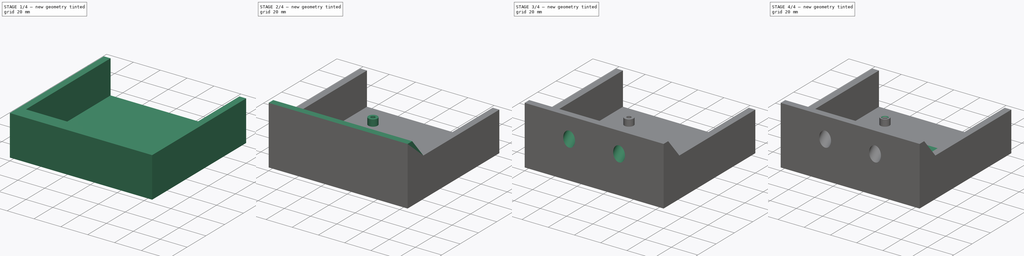
[diagram: build sequence overview — one tinted view per stage of 4, left to right]
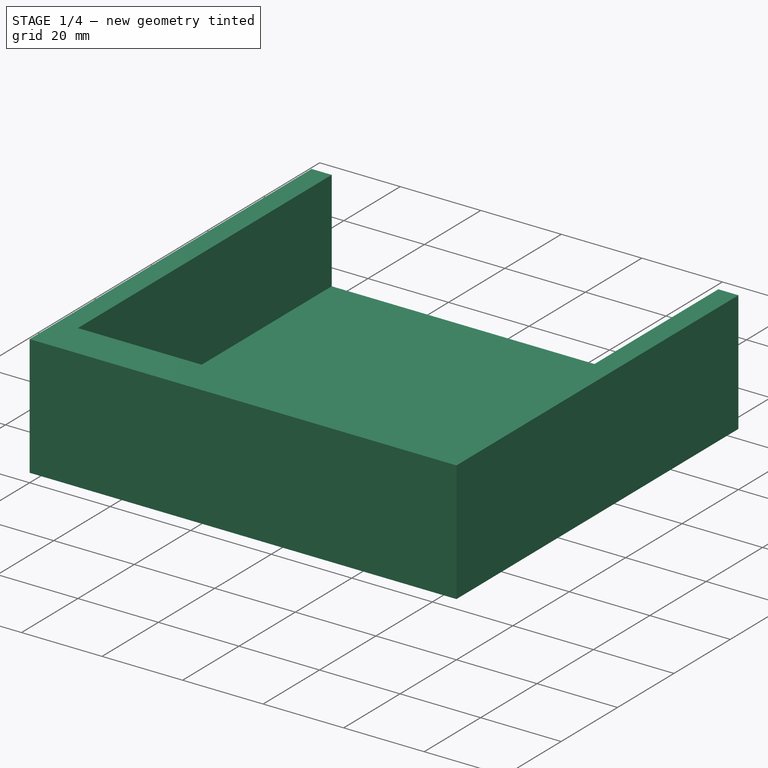
[diagram: stage 1 of 4 — iso view after this stage's code; geometry added in this stage tinted green]
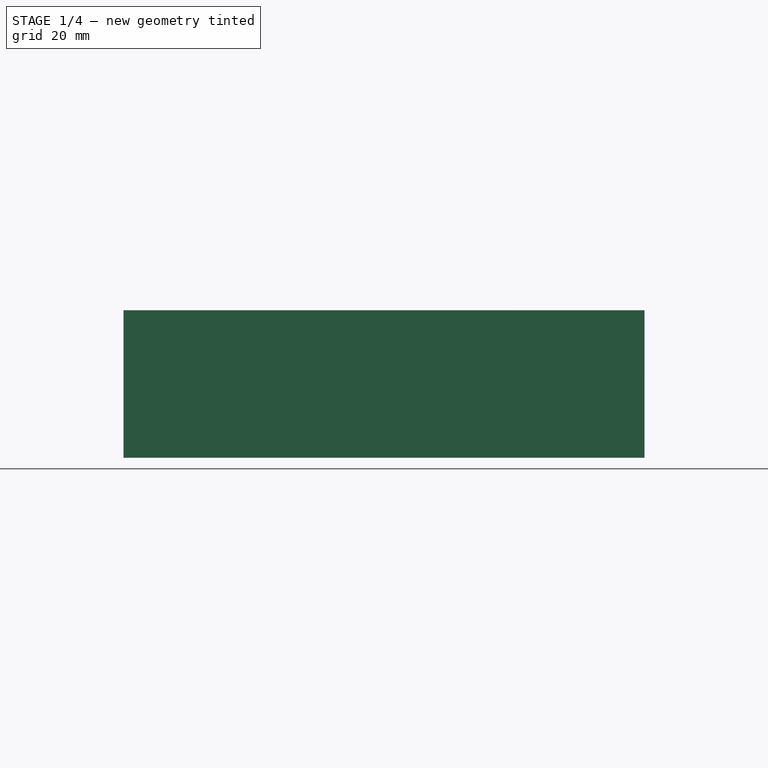
[diagram: stage 1 of 4 — front view after this stage's code; geometry added in this stage tinted green]
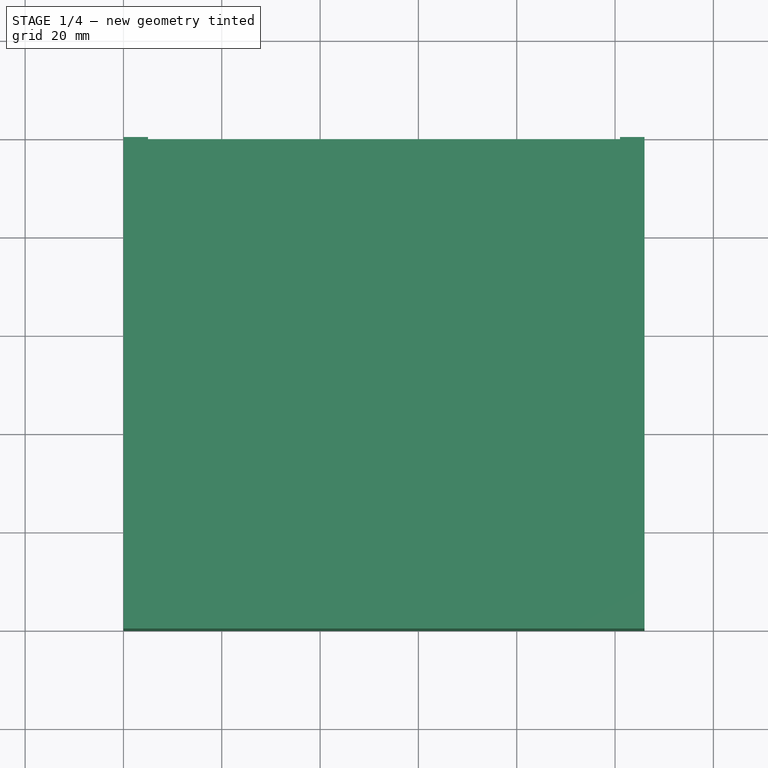
[diagram: stage 1 of 4 — top view after this stage's code; geometry added in this stage tinted green]
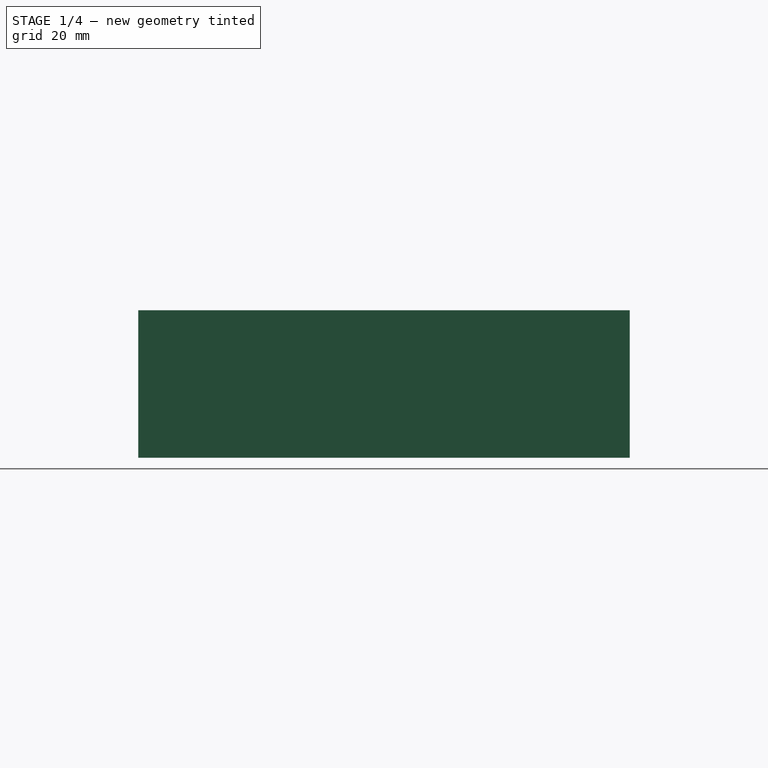
[diagram: stage 1 of 4 — right view after this stage's code; geometry added in this stage tinted green]
FCSTD DOCUMENT  (FreeCAD 1.0R39285 (Git))
Label: CAD-Bottom_RevA
License: All rights reserved
LicenseURL: https://en.wikipedia.org/wiki/All_rights_reserved
objects: Sketcher::SketchObject×8, PartDesign::Pad×6, PartDesign::Body×2, PartDesign::Pocket×2, PartDesign::Fillet×1, PartDesign::Chamfer×1
note: 48 computed .brp shape members not serialized (recipe doc carries the construction recipe); baked Part::Feature solids carry a one-line shape summary decoded from their .brp

FEATURE [Sketcher::SketchObject] Sketch
  ArcFitTolerance = 1e-06
  AttachmentSupport = -> [XY_Plane]
  FullyConstrained = true
  MakeInternals = false
  MapMode = 5
  sketch-geometry (21):
    g0: LineSegment [constr] StartX=8 StartY=13 StartZ=0 EndX=98 EndY=13 EndZ=0
    g1: LineSegment [constr] StartX=98 StartY=13 StartZ=0 EndX=98 EndY=85 EndZ=0
    g2: LineSegment [constr] StartX=98 StartY=85 StartZ=0 EndX=8 EndY=85 EndZ=0
    g3: LineSegment [constr] StartX=8 StartY=85 StartZ=0 EndX=8 EndY=13 EndZ=0
    g4: LineSegment StartX=0 StartY=0 StartZ=0 EndX=106 EndY=0 EndZ=0
    g5: LineSegment StartX=106 StartY=0 StartZ=0 EndX=106 EndY=100 EndZ=0
    g6: LineSegment StartX=106 StartY=100 StartZ=0 EndX=0 EndY=100 EndZ=0
    g7: LineSegment StartX=0 StartY=100 StartZ=0 EndX=0 EndY=0 EndZ=0
    g8: LineSegment [constr] StartX=8 StartY=13 StartZ=0 EndX=0 EndY=0 EndZ=0
    g9: LineSegment [constr] StartX=98 StartY=13 StartZ=0 EndX=106 EndY=0 EndZ=0
    g10: Circle [constr] CenterX=23 CenterY=80.8 CenterZ=0 NormalX=0 NormalY=0 NormalZ=1 AngleXU=0 Radius=1.6
    g11: LineSegment [constr] StartX=8 StartY=85 StartZ=0 EndX=23 EndY=80.8 EndZ=0
    g12: LineSegment [constr] StartX=98 StartY=13 StartZ=0 EndX=94.6 EndY=17.2 EndZ=0
    g13: Circle [constr] CenterX=83 CenterY=80.8 CenterZ=0 NormalX=0 NormalY=0 NormalZ=1 AngleXU=0 Radius=1.6
    g14: Circle [constr] CenterX=94.6 CenterY=17.2 CenterZ=0 NormalX=0 NormalY=0 NormalZ=1 AngleXU=0 Radius=1.6
    g15: Circle [constr] CenterX=12.5 CenterY=17.2 CenterZ=0 NormalX=0 NormalY=0 NormalZ=1 AngleXU=0 Radius=1.6
    g16: LineSegment [constr] StartX=53 StartY=85 StartZ=0 EndX=53 EndY=13 EndZ=0
    g17: LineSegment [constr] StartX=83 StartY=80.8 StartZ=0 EndX=23 EndY=80.8 EndZ=0
    g18: LineSegment [constr] StartX=12.5 StartY=17.2 StartZ=0 EndX=12.5 EndY=13 EndZ=0
    g19: LineSegment [constr] StartX=23 StartY=80.8 StartZ=0 EndX=23 EndY=85 EndZ=0
    g20: LineSegment [constr] StartX=12.5 StartY=17.2 StartZ=0 EndX=94.6 EndY=17.2 EndZ=0
  constraints (55):
    c: Coincident(g0,g1)
    c: Coincident(g1,g2)
    c: Coincident(g2,g3)
    c: Coincident(g3,g0)
    c: Horizontal(g0)
    c: Horizontal(g2)
    c: Vertical(g1)
    c: Vertical(g3)
    c: DistanceX(g2,g2) = 90
    c: DistanceY(g3,g3) = 72
    c: Coincident(g4,g5)
    c: Coincident(g5,g6)
    c: Coincident(g6,g7)
    c: Coincident(g7,g4)
    c: Horizontal(g4)
    c: Horizontal(g6)
    c: Vertical(g5)
    c: Vertical(g7)
    c: Coincident(g4,g-1)
    c: Coincident(g8,g0)
    c: Coincident(g8,g4)
    c: Coincident(g9,g0)
    c: Coincident(g9,g4)
    c: Equal(g9,g8)
    c: DistanceY(g8,g8) = 13
    c: DistanceX(g8,g8) = 8
    c: DistanceY(g7,g7) = 100
    c: Diameter(g10) = 3.2
    c: Coincident(g11,g2)
    c: Coincident(g11,g10)
    c: Coincident(g12,g0)
    c: Coincident(g14,g12)
    c: Equal(g15,g13)
    c: Equal(g13,g14)
    c: Equal(g14,g10)
    c: Symmetric(g2,g2,g16)
    c: Symmetric(g0,g0,g16)
    c: Distance(g10,g16) = 30
    c: DistanceY(g15,g10) = 63.6
    c: Coincident(g17,g10)
    c: Horizontal(g17)
    c: Distance(g13,g16) = 30
    c: Coincident(g17,g13)
    c: PointOnObject(g18,g0)
    c: Vertical(g18)
    c: Coincident(g19,g10)
    c: PointOnObject(g19,g2)
    c: Vertical(g19)
    c: Equal(g19,g18)
    c: Distance(g15,g16) = 40.5
    c: Distance(g12,g16) = 41.6
    c: Coincident(g18,g15)
    c: Coincident(g20,g15)
    c: Coincident(g20,g12)
    c: Horizontal(g20)
FEATURE [PartDesign::Pad] Pad
  Direction = (0,0,1)
  Length = 5
  Length2 = 10
  Profile = -> Sketch
  ReferenceAxis = -> Sketch [N_Axis]
  Refine = true
  Reversed = true
  Suppressed = false
  Type = 0
FEATURE [Sketcher::SketchObject] Sketch001
  ArcFitTolerance = 1e-06
  AttachmentSupport = -> [Pad]
  ExternalGeometry = -> [Pad]
  FullyConstrained = true
  MakeInternals = false
  MapMode = 5
  sketch-geometry (14):
    g0: LineSegment StartX=5 StartY=95 StartZ=0 EndX=5 EndY=10 EndZ=0
    g1: LineSegment StartX=5 StartY=10 StartZ=0 EndX=101 EndY=10 EndZ=0
    g2: LineSegment StartX=101 StartY=10 StartZ=0 EndX=101 EndY=95 EndZ=0
    g3: LineSegment [constr] StartX=101 StartY=95 StartZ=0 EndX=5 EndY=95 EndZ=0
    g4: LineSegment [constr] StartX=5 StartY=10 StartZ=0 EndX=0 EndY=0 EndZ=0
    g5: LineSegment [constr] StartX=101 StartY=10 StartZ=0 EndX=106 EndY=0 EndZ=0
    g6: LineSegment StartX=0 StartY=0 StartZ=0 EndX=106 EndY=0 EndZ=0
    g7: LineSegment StartX=106 StartY=0 StartZ=0 EndX=106 EndY=100 EndZ=0
    g8: LineSegment [constr] StartX=106 StartY=100 StartZ=0 EndX=0 EndY=100 EndZ=0
    g9: LineSegment StartX=0 StartY=100 StartZ=0 EndX=0 EndY=0 EndZ=0
    g10: LineSegment StartX=5 StartY=95 StartZ=0 EndX=5 EndY=100 EndZ=0
    g11: LineSegment StartX=101 StartY=95 StartZ=0 EndX=101 EndY=100 EndZ=0
    g12: LineSegment StartX=5 StartY=100 StartZ=0 EndX=0 EndY=100 EndZ=0
    g13: LineSegment StartX=101 StartY=100 StartZ=0 EndX=106 EndY=100 EndZ=0
  constraints (36):
    c: Coincident(g0,g1)
    c: Coincident(g1,g2)
    c: Coincident(g2,g3)
    c: Coincident(g3,g0)
    c: Vertical(g0)
    c: Vertical(g2)
    c: Horizontal(g1)
    c: Horizontal(g3)
    c: Coincident(g4,g0)
    c: Coincident(g4,g-1)
    c: Coincident(g5,g1)
    c: Coincident(g5,g-4)
    c: DistanceY(g4,g4) = 10
    c: DistanceX(g4,g4) = 5
    c: Equal(g5,g4)
    c: Coincident(g6,g7)
    c: Coincident(g7,g8)
    c: Coincident(g8,g9)
    c: Coincident(g9,g6)
    c: Horizontal(g6)
    c: Horizontal(g8)
    c: Vertical(g7)
    c: Vertical(g9)
    c: Coincident(g6,g4)
    c: Coincident(g7,g-4)
    c: DistanceY(g2,g7) = 5
    c: Coincident(g10,g0)
    c: PointOnObject(g10,g8)
    c: Vertical(g10)
    c: Coincident(g11,g2)
    c: PointOnObject(g11,g8)
    c: Vertical(g11)
    c: Coincident(g12,g10)
    c: Coincident(g12,g8)
    c: Coincident(g13,g11)
    c: Coincident(g13,g7)
FEATURE [PartDesign::Pad] Pad001
  BaseFeature = -> Pad
  Direction = (0,0,1)
  Length = 25
  Length2 = 10
  Profile = -> Sketch001
  ReferenceAxis = -> Sketch001 [N_Axis]
  Refine = true
  Suppressed = false
  Type = 0
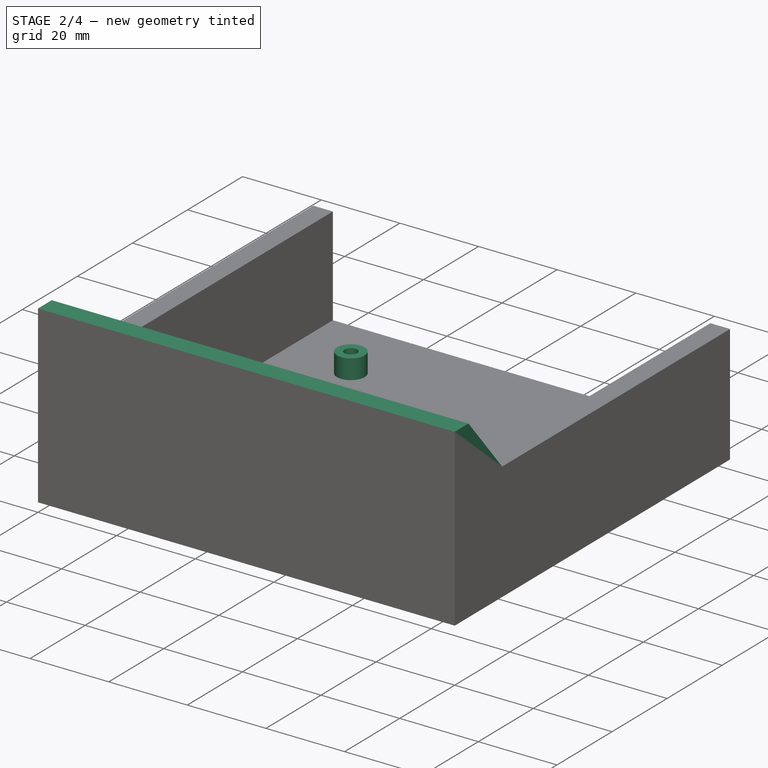
[diagram: stage 2 of 4 — iso view after this stage's code; geometry added in this stage tinted green]
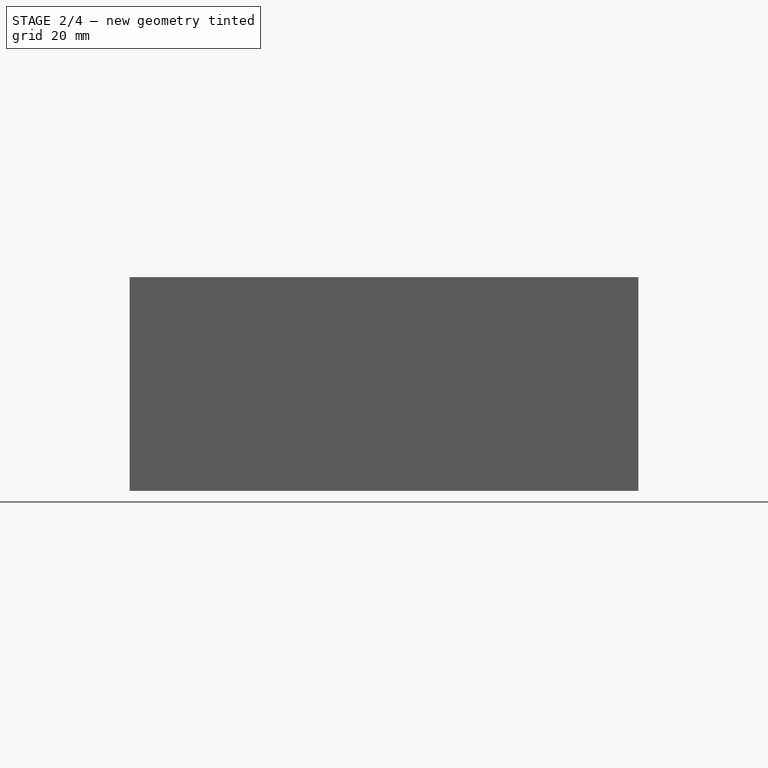
[diagram: stage 2 of 4 — front view after this stage's code; geometry added in this stage tinted green]
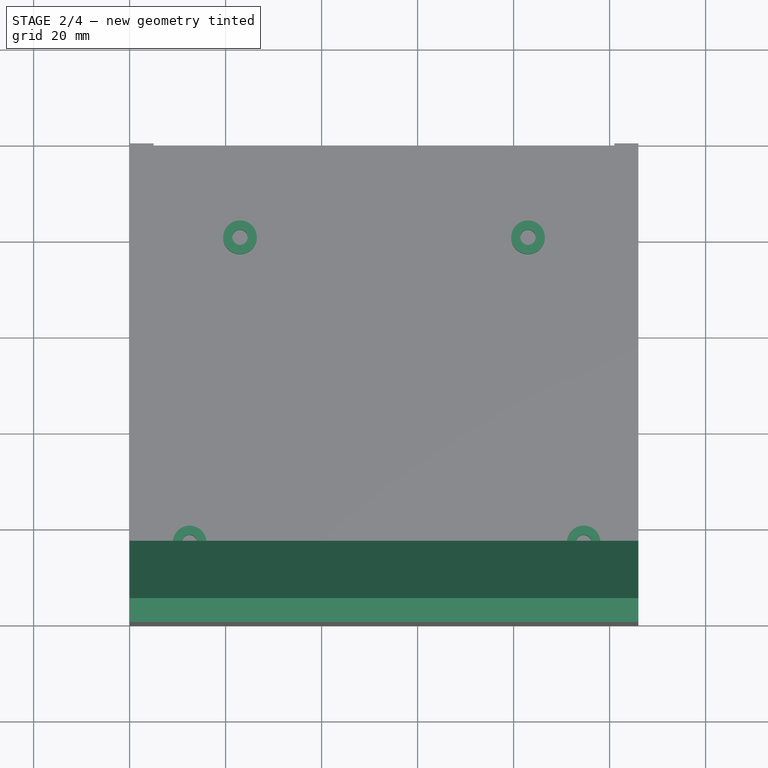
[diagram: stage 2 of 4 — top view after this stage's code; geometry added in this stage tinted green]
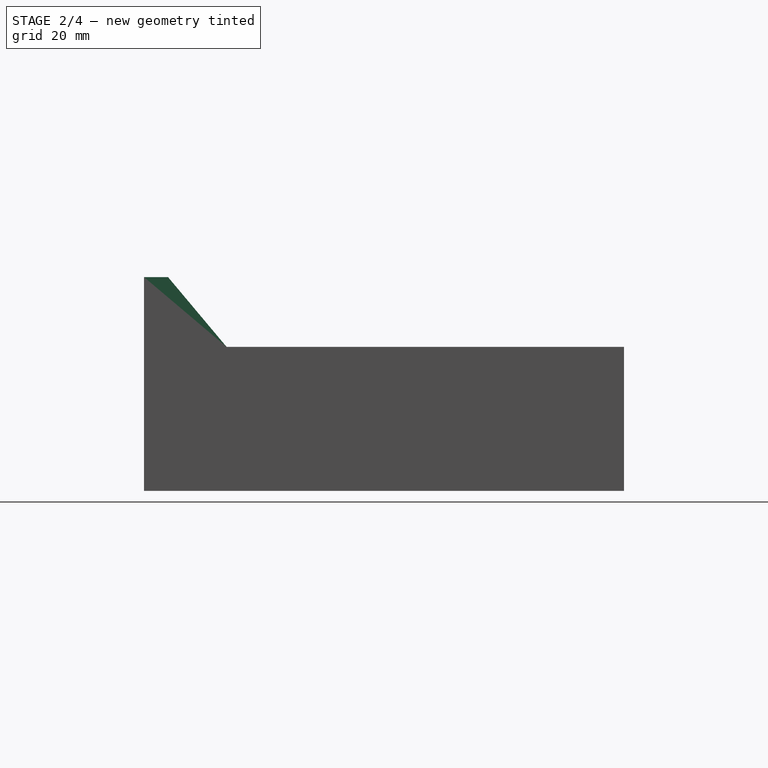
[diagram: stage 2 of 4 — right view after this stage's code; geometry added in this stage tinted green]
FEATURE [Sketcher::SketchObject] Sketch002
  ArcFitTolerance = 1e-06
  AttachmentSupport = -> [Pad001]
  FullyConstrained = true
  MakeInternals = false
  MapMode = 5
  expr: Constraints[11] = Sketch.Constraints[8]
  expr: Constraints[12] = Sketch.Constraints[9]
  expr: Constraints[27] = Sketch.Constraints[24]
  expr: Constraints[28] = Sketch.Constraints[25]
  expr: Constraints[29] = Sketch.Constraints[26]
  expr: Constraints[30] = Sketch.Constraints[27]
  expr: Constraints[40] = Sketch.Constraints[37]
  expr: Constraints[41] = Sketch.Constraints[38]
  expr: Constraints[44] = Sketch.Constraints[41]
  expr: Constraints[52] = Sketch.Constraints[49]
  expr: Constraints[53] = Sketch.Constraints[50]
  sketch-geometry (25):
    g0: Circle CenterX=83 CenterY=80.8 CenterZ=0 NormalX=0 NormalY=0 NormalZ=1 AngleXU=0 Radius=3.5
    g1: Circle CenterX=94.6 CenterY=17.2 CenterZ=0 NormalX=0 NormalY=0 NormalZ=1 AngleXU=0 Radius=3.5
    g2: Circle CenterX=12.5 CenterY=17.2 CenterZ=0 NormalX=0 NormalY=0 NormalZ=1 AngleXU=0 Radius=3.5
    g3: Circle CenterX=23 CenterY=80.8 CenterZ=0 NormalX=0 NormalY=0 NormalZ=1 AngleXU=0 Radius=3.5
    g4: LineSegment [constr] StartX=8 StartY=13 StartZ=0 EndX=98 EndY=13 EndZ=0
    g5: LineSegment [constr] StartX=98 StartY=13 StartZ=0 EndX=98 EndY=85 EndZ=0
    g6: LineSegment [constr] StartX=98 StartY=85 StartZ=0 EndX=8 EndY=85 EndZ=0
    g7: LineSegment [constr] StartX=8 StartY=85 StartZ=0 EndX=8 EndY=13 EndZ=0
    g8: LineSegment [constr] StartX=0 StartY=0 StartZ=0 EndX=106 EndY=0 EndZ=0
    g9: LineSegment [constr] StartX=106 StartY=0 StartZ=0 EndX=106 EndY=100 EndZ=0
    g10: LineSegment [constr] StartX=106 StartY=100 StartZ=0 EndX=0 EndY=100 EndZ=0
    g11: LineSegment [constr] StartX=0 StartY=100 StartZ=0 EndX=0 EndY=0 EndZ=0
    g12: LineSegment [constr] StartX=8 StartY=13 StartZ=0 EndX=0 EndY=0 EndZ=0
    g13: LineSegment [constr] StartX=98 StartY=13 StartZ=0 EndX=106 EndY=0 EndZ=0
    g14: Circle CenterX=23 CenterY=80.8 CenterZ=0 NormalX=0 NormalY=0 NormalZ=1 AngleXU=0 Radius=1.6
    g15: LineSegment [constr] StartX=8 StartY=85 StartZ=0 EndX=23 EndY=80.8 EndZ=0
    g16: LineSegment [constr] StartX=98 StartY=13 StartZ=0 EndX=94.6 EndY=17.2 EndZ=0
    g17: Circle CenterX=83 CenterY=80.8 CenterZ=0 NormalX=0 NormalY=0 NormalZ=1 AngleXU=0 Radius=1.6
    g18: Circle CenterX=94.6 CenterY=17.2 CenterZ=0 NormalX=0 NormalY=0 NormalZ=1 AngleXU=0 Radius=1.6
    g19: Circle CenterX=12.5 CenterY=17.2 CenterZ=0 NormalX=0 NormalY=0 NormalZ=1 AngleXU=0 Radius=1.6
    g20: LineSegment [constr] StartX=53 StartY=85 StartZ=0 EndX=53 EndY=13 EndZ=0
    g21: LineSegment [constr] StartX=83 StartY=80.8 StartZ=0 EndX=23 EndY=80.8 EndZ=0
    g22: LineSegment [constr] StartX=12.5 StartY=17.2 StartZ=0 EndX=12.5 EndY=13 EndZ=0
    g23: LineSegment [constr] StartX=23 StartY=80.8 StartZ=0 EndX=23 EndY=85 EndZ=0
    g24: LineSegment [constr] StartX=12.5 StartY=17.2 StartZ=0 EndX=94.6 EndY=17.2 EndZ=0
  constraints (63):
    c: Equal(g2,g0)
    c: Equal(g0,g1)
    c: Diameter(g3) = 7
    c: Coincident(g4,g5)
    c: Coincident(g5,g6)
    c: Coincident(g6,g7)
    c: Coincident(g7,g4)
    c: Horizontal(g4)
    c: Horizontal(g6)
    c: Vertical(g5)
    c: Vertical(g7)
    c: DistanceX(g6,g6) = 90
    c: DistanceY(g7,g7) = 72
    c: Coincident(g8,g9)
    c: Coincident(g9,g10)
    c: Coincident(g10,g11)
    c: Coincident(g11,g8)
    c: Horizontal(g8)
    c: Horizontal(g10)
    c: Vertical(g9)
    c: Vertical(g11)
    c: Coincident(g8,g-1)
    c: Coincident(g12,g4)
    c: Coincident(g12,g8)
    c: Coincident(g13,g4)
    c: Coincident(g13,g8)
    c: Equal(g13,g12)
    c: DistanceY(g12,g12) = 13
    c: DistanceX(g12,g12) = 8
    c: DistanceY(g11,g11) = 100
    c: Diameter(g14) = 3.2
    c: Coincident(g15,g6)
    c: Coincident(g15,g14)
    c: Coincident(g16,g4)
    c: Coincident(g18,g16)
    c: Equal(g19,g17)
    c: Equal(g17,g18)
    c: Equal(g18,g14)
    c: Symmetric(g6,g6,g20)
    c: Symmetric(g4,g4,g20)
    c: Distance(g14,g20) = 30
    c: DistanceY(g19,g14) = 63.6
    c: Coincident(g21,g14)
    c: Horizontal(g21)
    c: Distance(g17,g20) = 30
    c: Coincident(g21,g17)
    c: PointOnObject(g22,g4)
    c: Vertical(g22)
    c: Coincident(g23,g14)
    c: PointOnObject(g23,g6)
    c: Vertical(g23)
    c: Equal(g23,g22)
    c: Distance(g19,g20) = 40.5
    c: Distance(g16,g20) = 41.6
    c: Coincident(g22,g19)
    c: Coincident(g24,g19)
    c: Coincident(g24,g16)
    c: Horizontal(g24)
    c: Equal(g2,g3)
    c: Coincident(g3,g14)
    c: Coincident(g0,g17)
    c: Coincident(g1,g16)
    c: Coincident(g2,g19)
FEATURE [PartDesign::Pad] Pad002
  BaseFeature = -> Pad001
  Direction = (0,0,1)
  Length = 5
  Length2 = 10
  Profile = -> Sketch002
  ReferenceAxis = -> Sketch002 [N_Axis]
  Refine = true
  Suppressed = false
  Type = 0
FEATURE [PartDesign::Body] Body001
  AllowCompound = false
  Group = -> [Sketch003,Pad003]
  Origin = -> Origin001
  Placement = pos=(4,21,30) rot=(0,0,1;0rad)
  Tip = -> Pad003
FEATURE [Sketcher::SketchObject] Sketch004
  ArcFitTolerance = 1e-06
  AttachmentSupport = -> [Pad002]
  ExternalGeometry = -> [Pad002]
  FullyConstrained = true
  MakeInternals = false
  MapMode = 5
  Placement = pos=(0,0,0) rot=(0.57735,-0.57735,-0.57735;2.0944rad)
  sketch-geometry (4):
    g0: LineSegment StartX=-17.213 StartY=25 StartZ=0 EndX=-5 EndY=39.5548 EndZ=0
    g1: LineSegment StartX=-5 StartY=39.5548 StartZ=0 EndX=0 EndY=39.5548 EndZ=0
    g2: LineSegment StartX=0 StartY=39.5548 StartZ=0 EndX=0 EndY=25 EndZ=0
    g3: LineSegment StartX=-17.213 StartY=25 StartZ=0 EndX=0 EndY=25 EndZ=0
  constraints (11):
    c: PointOnObject(g0,g-5)
    c: Coincident(g1,g0)
    c: Horizontal(g1)
    c: Coincident(g2,g1)
    c: Coincident(g2,g-5)
    c: Vertical(g2)
    c: Angle(g-5,g0) = 0.872665
    c: DistanceX(g1,g1) = 5
    c: Distance(g0,g0) = 19
    c: Coincident(g3,g0)
    c: Coincident(g3,g2)
FEATURE [PartDesign::Pad] Pad004
  BaseFeature = -> Pad002
  Direction = (-1,0,0)
  Length = 26
  Length2 = 10
  Profile = -> Sketch004
  ReferenceAxis = -> Sketch004 [N_Axis]
  Refine = true
  Reversed = true
  Suppressed = false
  Type = 3
  UpToFace = -> Pad002 [Face3]
FEATURE [Sketcher::SketchObject] Sketch005
  ArcFitTolerance = 1e-06
  AttachmentSupport = -> [Pad004]
  ExternalGeometry = -> [Pad004]
  FullyConstrained = true
  MakeInternals = false
  MapMode = 5
  Placement = pos=(5,0,0) rot=(0.57735,0.57735,0.57735;2.0944rad)
  sketch-geometry (4):
    g0: LineSegment StartX=10 StartY=10.5741 StartZ=0 EndX=10 EndY=25 EndZ=0
    g1: LineSegment StartX=10 StartY=25 StartZ=0 EndX=17.213 EndY=25 EndZ=0
    g2: ArcOfCircle CenterX=10 CenterY=25 CenterZ=0 NormalX=0 NormalY=0 NormalZ=1 AngleXU=0 Radius=7.21296 StartAngle=5.75959 EndAngle=6.28319
    g3: LineSegment StartX=16.2466 StartY=21.3935 StartZ=0 EndX=10 EndY=10.5741 EndZ=0
  constraints (10):
    c: PointOnObject(g0,g-6)
    c: PointOnObject(g0,g-5)
    c: Vertical(g0)
    c: Coincident(g1,g0)
    c: Coincident(g2,g1)
    c: Coincident(g1,g-5)
    c: Coincident(g2,g0)
    c: Coincident(g3,g0)
    c: Tangent(g3,g2) = 1.5708
    c: Angle(g2) = 0.523599
FEATURE [PartDesign::Pad] Pad005
  BaseFeature = -> Pad004
  Direction = (1,0,0)
  Length = 10
  Length2 = 10
  Profile = -> Sketch005
  ReferenceAxis = -> Sketch005 [N_Axis]
  Refine = true
  Suppressed = false
  Type = 3
  UpToFace = -> Pad004 [Face9]
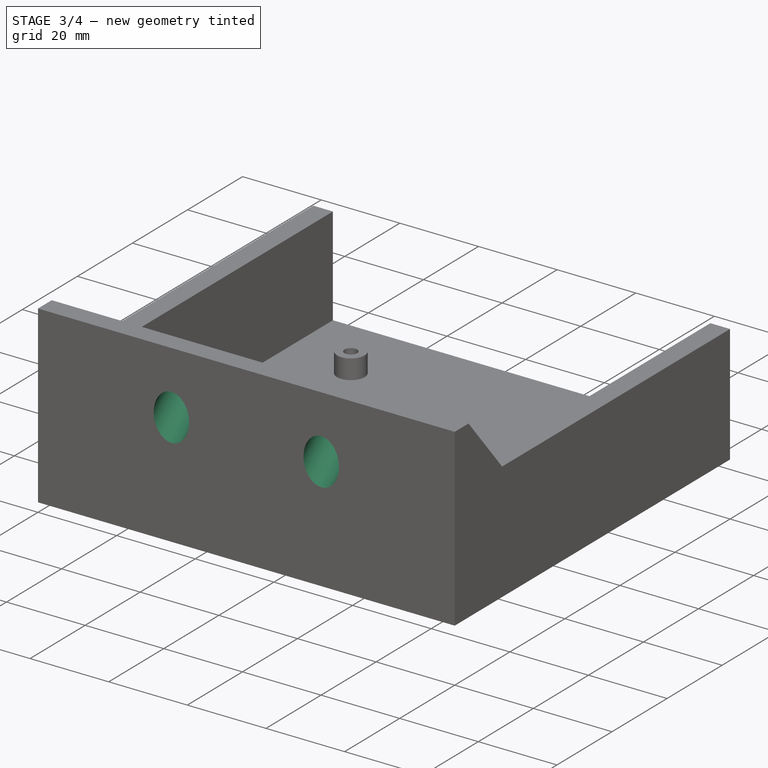
[diagram: stage 3 of 4 — iso view after this stage's code; geometry added in this stage tinted green]
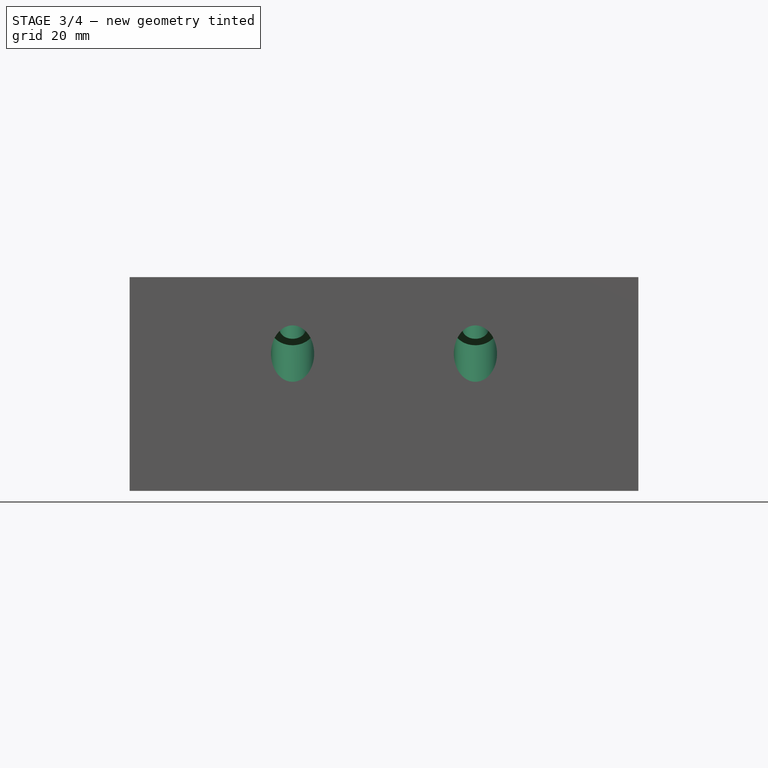
[diagram: stage 3 of 4 — front view after this stage's code; geometry added in this stage tinted green]
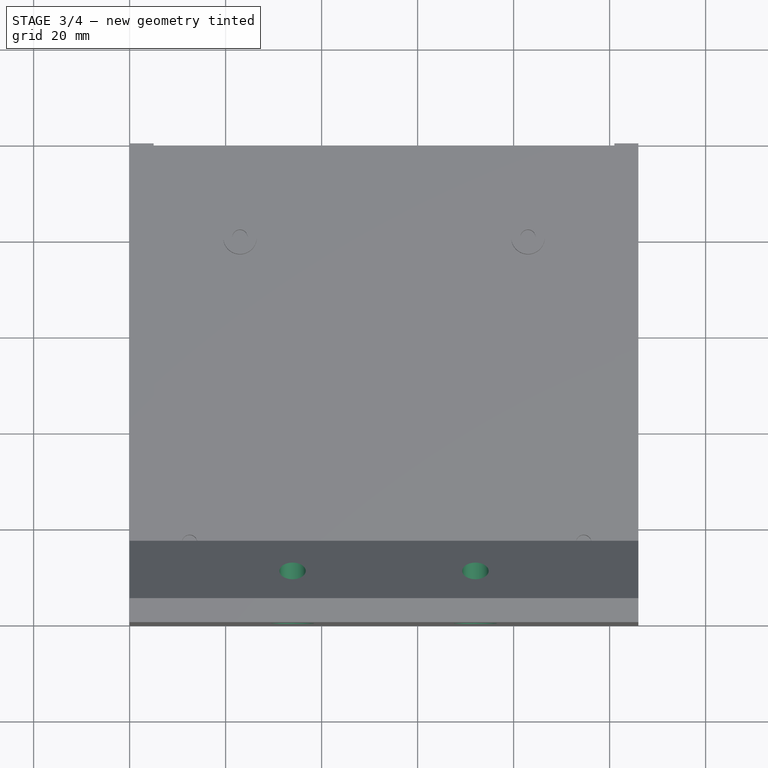
[diagram: stage 3 of 4 — top view after this stage's code; geometry added in this stage tinted green]
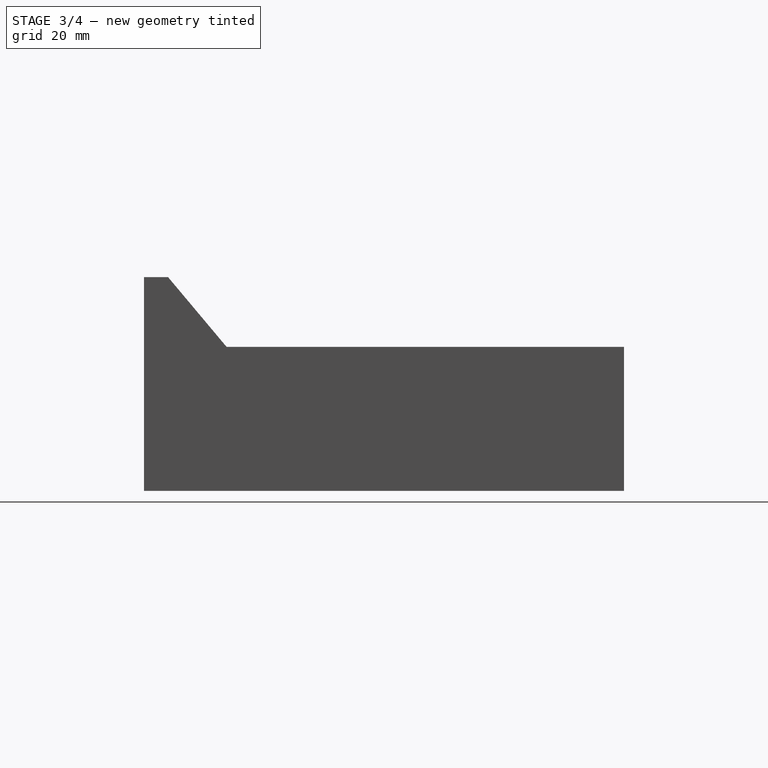
[diagram: stage 3 of 4 — right view after this stage's code; geometry added in this stage tinted green]
FEATURE [Sketcher::SketchObject] Sketch006
  ArcFitTolerance = 1e-06
  AttachmentSupport = -> [Pad005]
  ExternalGeometry = -> [Pad005]
  FullyConstrained = true
  MakeInternals = false
  MapMode = 5
  Placement = pos=(0,22.4111,18.8051) rot=(0,0.422618,0.906308;3.14159rad)
  sketch-geometry (5):
    g0: Circle CenterX=-72.05 CenterY=18.0868 CenterZ=0 NormalX=0 NormalY=0 NormalZ=1 AngleXU=0 Radius=2.75
    g1: Circle CenterX=-33.95 CenterY=18.0868 CenterZ=0 NormalX=0 NormalY=0 NormalZ=1 AngleXU=0 Radius=2.75
    g2: LineSegment [constr] StartX=-72.05 StartY=18.0868 StartZ=0 EndX=-33.95 EndY=18.0868 EndZ=0
    g3: LineSegment [constr] StartX=-106 StartY=27.0868 StartZ=0 EndX=-72.05 EndY=18.0868 EndZ=0
    g4: LineSegment [constr] StartX=-33.95 StartY=18.0868 StartZ=0 EndX=0 EndY=27.0868 EndZ=0
  constraints (12):
    c: Coincident(g2,g0)
    c: Coincident(g2,g1)
    c: Horizontal(g2)
    c: DistanceX(g2,g2) = 38.1
    c: Diameter(g0) = 5.5
    c: Equal(g1,g0)
    c: Coincident(g3,g-4)
    c: Coincident(g3,g0)
    c: Coincident(g4,g1)
    c: Coincident(g4,g-4)
    c: Equal(g4,g3)
    c: DistanceY(g3,g3) = 9
FEATURE [PartDesign::Pocket] Pocket
  BaseFeature = -> Pad005
  Direction = (0,-0.766044,-0.642788)
  Length = 5
  Length2 = 5
  Profile = -> Sketch006
  ReferenceAxis = -> Sketch006 [N_Axis]
  Refine = true
  Suppressed = false
  Type = 1
FEATURE [Sketcher::SketchObject] Sketch007
  ArcFitTolerance = 1e-06
  AttachmentOffset = pos=(0,0,-6) rot=(0,0,1;0rad)
  AttachmentSupport = -> [Pocket]
  ExternalGeometry = -> [Pocket]
  FullyConstrained = true
  MakeInternals = false
  MapMode = 5
  Placement = pos=(0,17.8148,14.9484) rot=(0,0.422618,0.906308;3.14159rad)
  sketch-geometry (2):
    g0: Circle CenterX=-72.05 CenterY=18.0868 CenterZ=0 NormalX=0 NormalY=0 NormalZ=1 AngleXU=0 Radius=4.5
    g1: Circle CenterX=-33.95 CenterY=18.0868 CenterZ=0 NormalX=0 NormalY=0 NormalZ=1 AngleXU=0 Radius=4.5
  constraints (4):
    c: Coincident(g0,g-4)
    c: Coincident(g1,g-3)
    c: Equal(g1,g0)
    c: Diameter(g0) = 9
FEATURE [PartDesign::Pocket] Pocket001
  BaseFeature = -> Pocket
  Direction = (0,-0.766044,-0.642788)
  Length = 5
  Length2 = 5
  Profile = -> Sketch007
  ReferenceAxis = -> Sketch007 [N_Axis]
  Refine = true
  Suppressed = false
  Type = 1
FEATURE [PartDesign::Fillet] Fillet
  Base = -> Pocket001 [Edge53]
  BaseFeature = -> Pocket001
  Radius = 5
  Refine = true
  SupportTransform = false
  Suppressed = false
  UseAllEdges = false
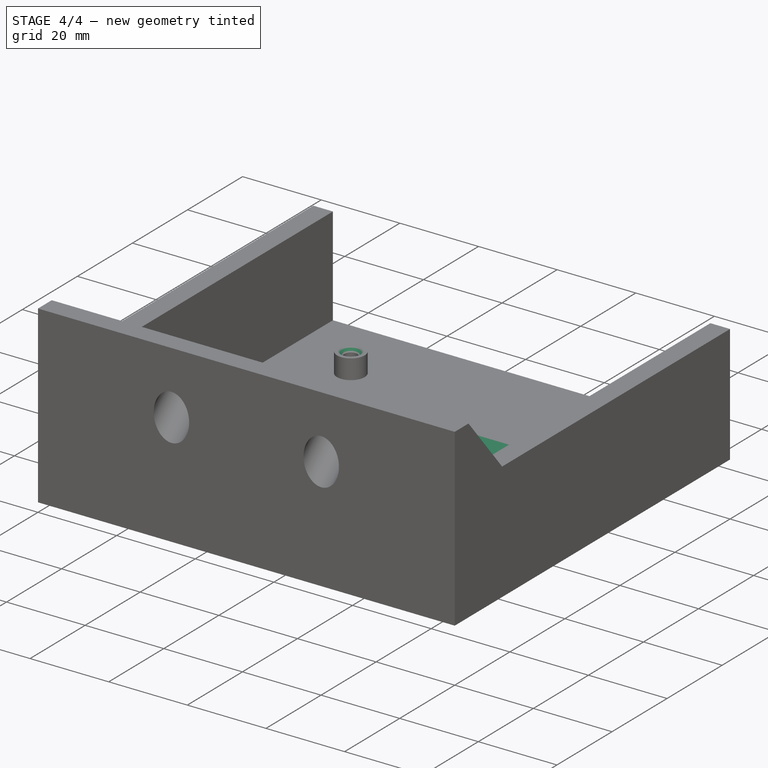
[diagram: stage 4 of 4 — iso view after this stage's code; geometry added in this stage tinted green]
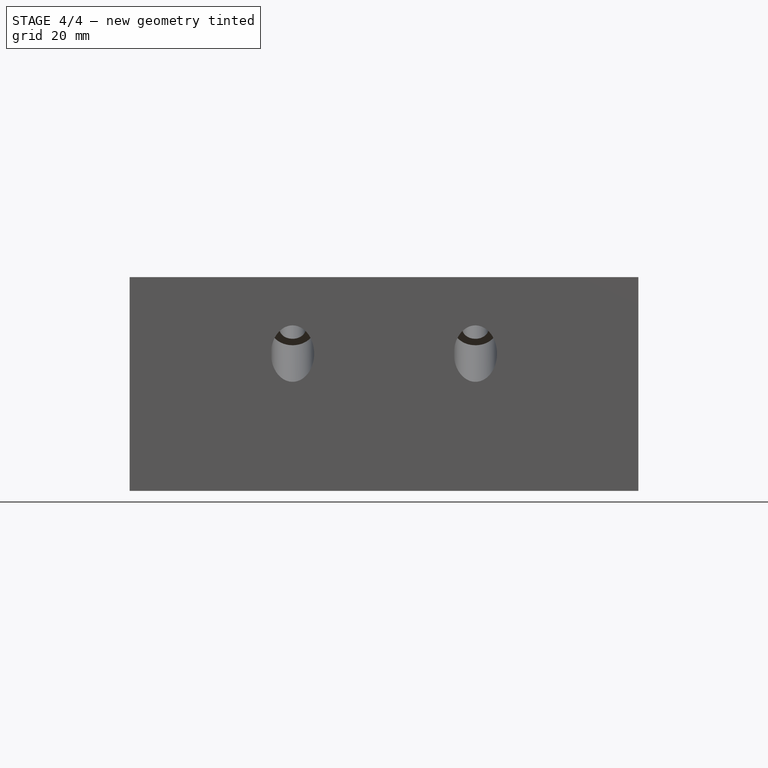
[diagram: stage 4 of 4 — front view after this stage's code; geometry added in this stage tinted green]
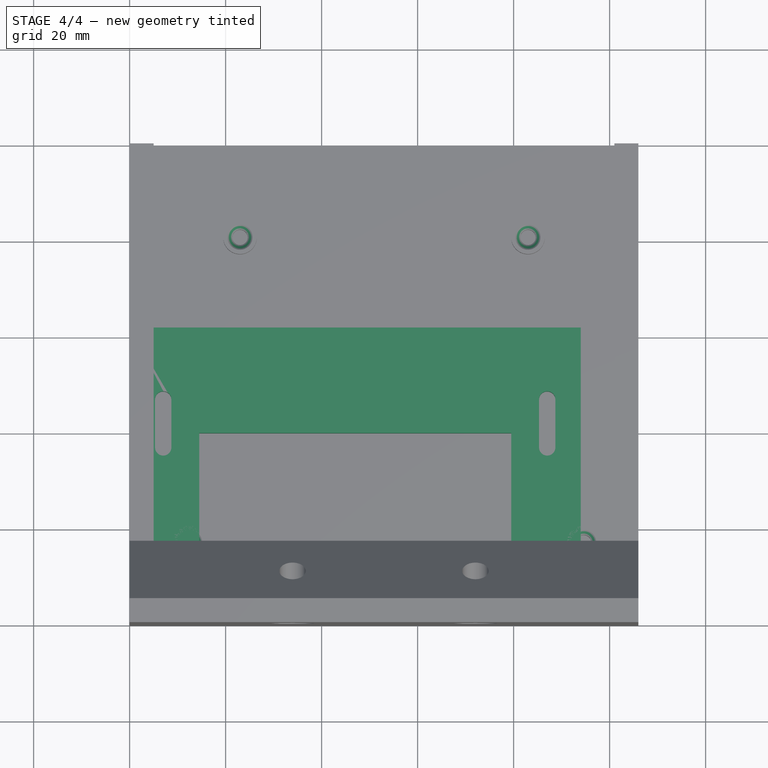
[diagram: stage 4 of 4 — top view after this stage's code; geometry added in this stage tinted green]
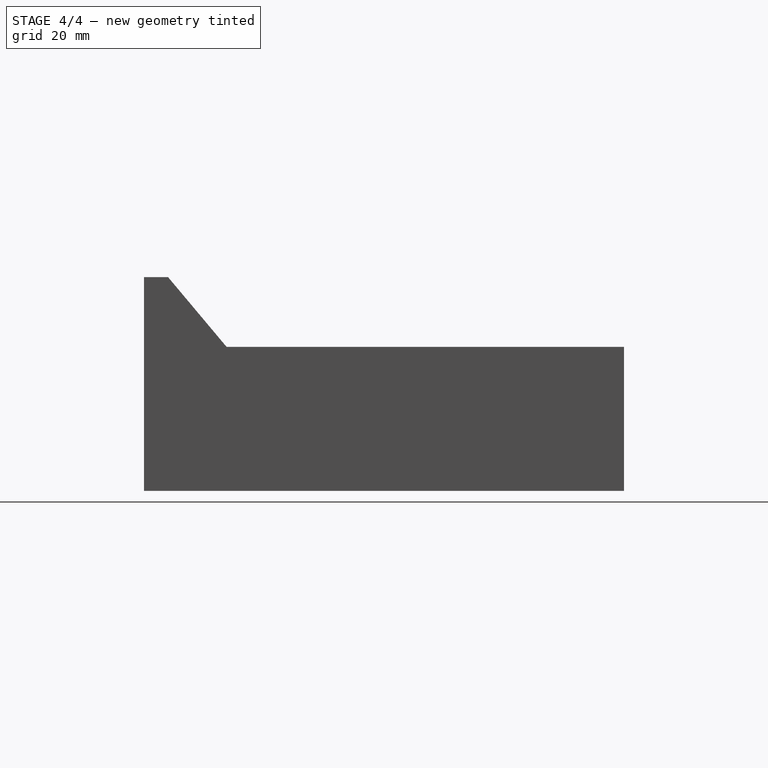
[diagram: stage 4 of 4 — right view after this stage's code; geometry added in this stage tinted green]
FEATURE [Sketcher::SketchObject] Sketch003
  ArcFitTolerance = 1e-06
  AttachmentSupport = -> [XY_Plane001]
  FullyConstrained = true
  MakeInternals = false
  MapMode = 5
  sketch-geometry (23):
    g0: LineSegment StartX=0 StartY=0 StartZ=0 EndX=14.5 EndY=0 EndZ=0
    g1: LineSegment StartX=94 StartY=0 StartZ=0 EndX=94 EndY=62 EndZ=0
    g2: LineSegment StartX=94 StartY=62 StartZ=0 EndX=0 EndY=62 EndZ=0
    g3: LineSegment StartX=0 StartY=62 StartZ=0 EndX=0 EndY=0 EndZ=0
    g4: ArcOfCircle CenterX=7 CenterY=47 CenterZ=0 NormalX=0 NormalY=0 NormalZ=1 AngleXU=0 Radius=1.7 StartAngle=-9e-16 EndAngle=3.14159
    g5: ArcOfCircle CenterX=7 CenterY=37 CenterZ=0 NormalX=0 NormalY=0 NormalZ=1 AngleXU=0 Radius=1.7 StartAngle=3.14159 EndAngle=6.28319
    g6: LineSegment StartX=8.7 StartY=47 StartZ=0 EndX=8.7 EndY=37 EndZ=0
    g7: LineSegment StartX=5.3 StartY=47 StartZ=0 EndX=5.3 EndY=37 EndZ=0
    g8: ArcOfCircle CenterX=87 CenterY=47 CenterZ=0 NormalX=0 NormalY=0 NormalZ=1 AngleXU=0 Radius=1.7 StartAngle=2e-16 EndAngle=3.14159
    g9: ArcOfCircle CenterX=87 CenterY=37 CenterZ=0 NormalX=0 NormalY=0 NormalZ=1 AngleXU=0 Radius=1.7 StartAngle=3.14159 EndAngle=6.28319
    g10: LineSegment StartX=88.7 StartY=47 StartZ=0 EndX=88.7 EndY=37 EndZ=0
    g11: LineSegment StartX=85.3 StartY=47 StartZ=0 EndX=85.3 EndY=37 EndZ=0
    g12: LineSegment [constr] StartX=7 StartY=47 StartZ=0 EndX=7 EndY=37 EndZ=0
    g13: LineSegment [constr] StartX=87 StartY=47 StartZ=0 EndX=87 EndY=37 EndZ=0
    g14: LineSegment [constr] StartX=7 StartY=47 StartZ=0 EndX=87 EndY=47 EndZ=0
    g15: LineSegment [constr] StartX=7 StartY=37 StartZ=0 EndX=87 EndY=37 EndZ=0
    g16: LineSegment [constr] StartX=0 StartY=62 StartZ=0 EndX=7 EndY=47 EndZ=0
    g17: LineSegment [constr] StartX=87 StartY=47 StartZ=0 EndX=94 EndY=62 EndZ=0
    g18: LineSegment StartX=79.5 StartY=0 StartZ=0 EndX=79.5 EndY=40 EndZ=0
    g19: LineSegment StartX=79.5 StartY=40 StartZ=0 EndX=14.5 EndY=40 EndZ=0
    g20: LineSegment StartX=14.5 StartY=40 StartZ=0 EndX=14.5 EndY=0 EndZ=0
    g21: LineSegment StartX=79.5 StartY=0 StartZ=0 EndX=94 EndY=0 EndZ=0
    g22: LineSegment [constr] StartX=14.5 StartY=0 StartZ=0 EndX=79.5 EndY=0 EndZ=0
  constraints (57):
    c: Coincident(g21,g1)
    c: Coincident(g1,g2)
    c: Coincident(g2,g3)
    c: Coincident(g3,g0)
    c: Horizontal(g0)
    c: Horizontal(g2)
    c: Vertical(g1)
    c: Vertical(g3)
    c: Coincident(g0,g-1)
    c: DistanceX(g2,g2) = 94
    c: DistanceY(g3,g3) = 62
    c: Tangent(g4,g6) = 1.5708
    c: Tangent(g4,g7) = -1.5708
    c: Tangent(g5,g6) = 1.5708
    c: Tangent(g5,g7) = -1.5708
    c: Equal(g4,g5)
    c: Vertical(g6)
    c: Tangent(g8,g10) = 1.5708
    c: Tangent(g8,g11) = -1.5708
    c: Tangent(g9,g10) = 1.5708
    c: Tangent(g9,g11) = -1.5708
    c: Equal(g8,g9)
    c: Coincident(g12,g4)
    c: Coincident(g12,g5)
    c: Coincident(g13,g8)
    c: Coincident(g13,g9)
    c: Vertical(g13)
    c: DistanceX(g4,g8) = 80
    c: Equal(g4,g8)
    c: Radius(g4) = 1.7
    c: Coincident(g14,g4)
    c: Coincident(g14,g8)
    c: Horizontal(g14)
    c: Coincident(g15,g5)
    c: Coincident(g15,g9)
    c: Horizontal(g15)
    c: DistanceY(g12,g12) = 10
    c: Coincident(g16,g2)
    c: Coincident(g16,g4)
    c: Coincident(g17,g8)
    c: Coincident(g17,g1)
    c: Equal(g17,g16)
    c: DistanceY(g16,g16) = 15
    c: Coincident(g18,g19)
    c: Coincident(g19,g20)
    c: Horizontal(g19)
    c: Vertical(g18)
    c: Vertical(g20)
    c: DistanceX(g19,g19) = 65
    c: Equal(g0,g21)
    c: Coincident(g0,g20)
    c: Coincident(g18,g21)
    c: DistanceY(g20,g20) = 40
    c: Coincident(g22,g0)
    c: Coincident(g22,g18)
    c: Horizontal(g22)
    c: Horizontal(g21)
FEATURE [PartDesign::Pad] Pad003
  Direction = (0,0,1)
  Length = 5
  Length2 = 10
  Profile = -> Sketch003
  ReferenceAxis = -> Sketch003 [N_Axis]
  Refine = true
  Suppressed = false
  Type = 0
FEATURE [PartDesign::Chamfer] Chamfer
  Angle = 45
  Base = -> Fillet [Edge55,Edge54,Edge56,Edge57]
  BaseFeature = -> Fillet
  ChamferType = 0
  FlipDirection = false
  Refine = true
  Size = 1
  Size2 = 1
  SupportTransform = false
  Suppressed = false
  UseAllEdges = false
FEATURE [PartDesign::Body] Body
  AllowCompound = false
  Group = -> [Sketch,Pad,Sketch001,Pad001,Sketch002,Pad002,Sketch004,Pad004,Sketch005,Pad005,Sketch006,Pocket,Sketch007,Pocket001,Fillet,Chamfer]
  Origin = -> Origin
  Tip = -> Chamfer
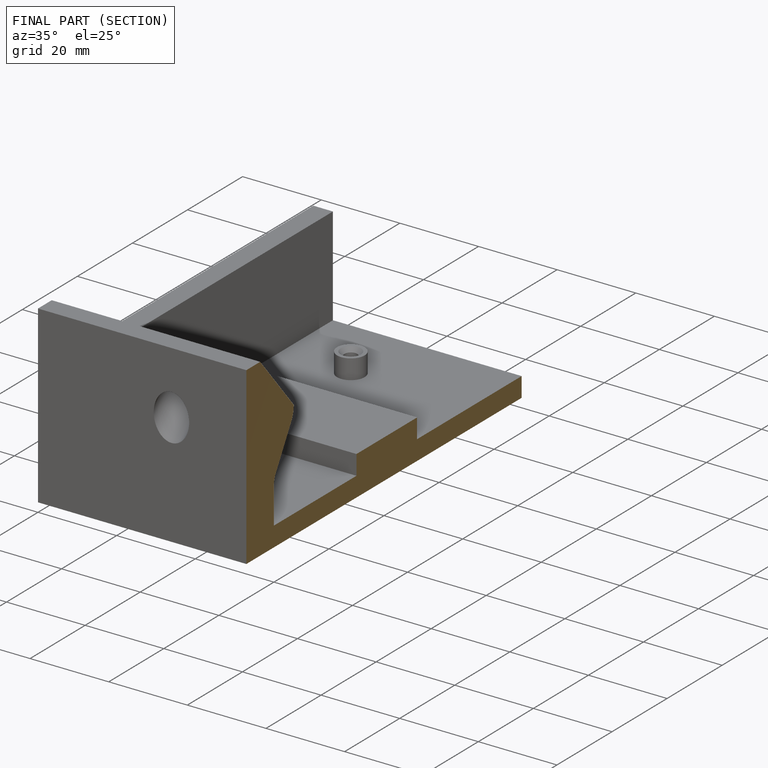
[diagram: finished part — half-section view (interior)]
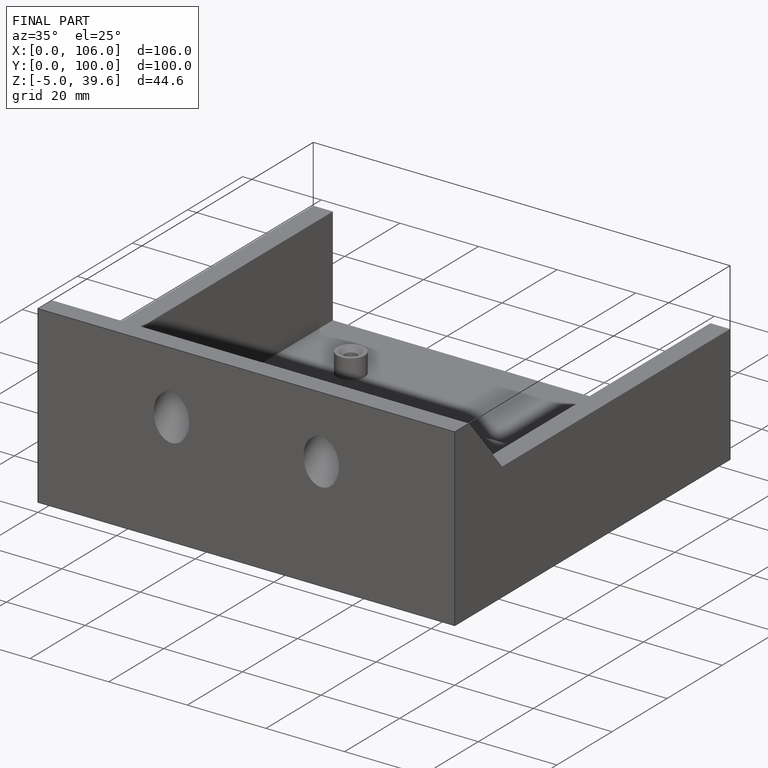
[diagram: finished part — iso view with bounding-box wireframe]
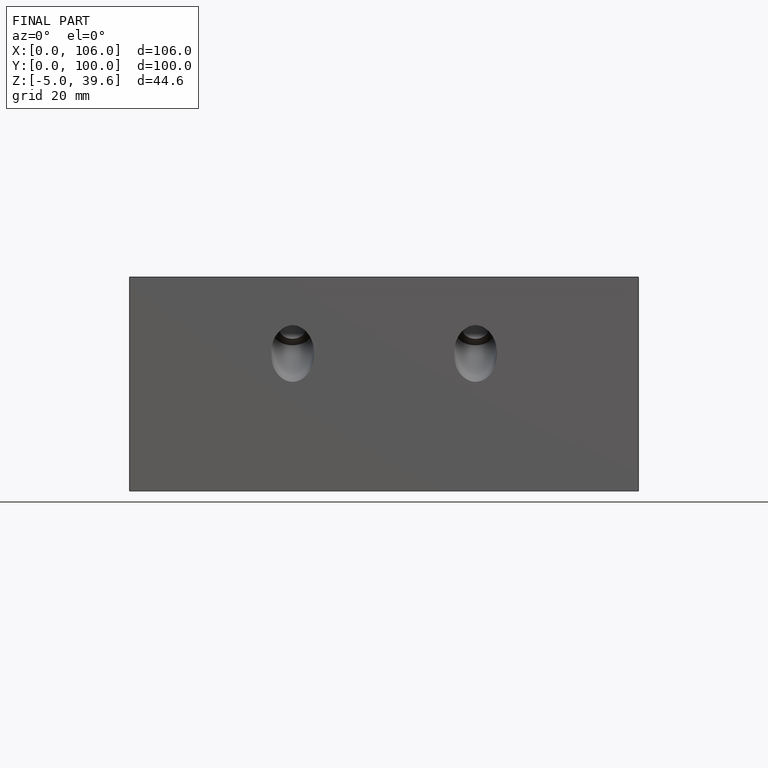
[diagram: finished part — front view with bounding-box wireframe]
